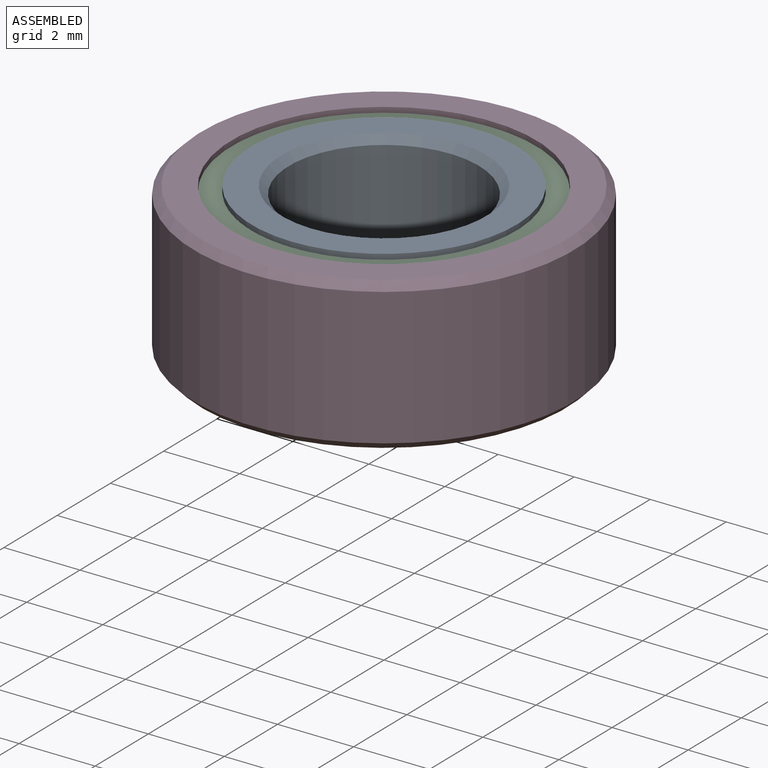
[diagram: assembled view]
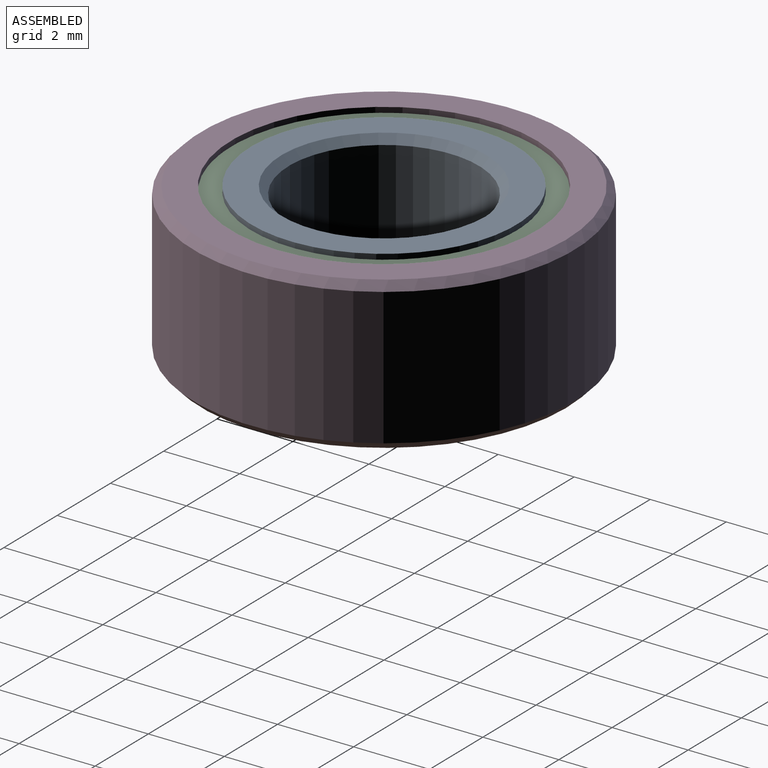
[diagram: assembled view, second angle]
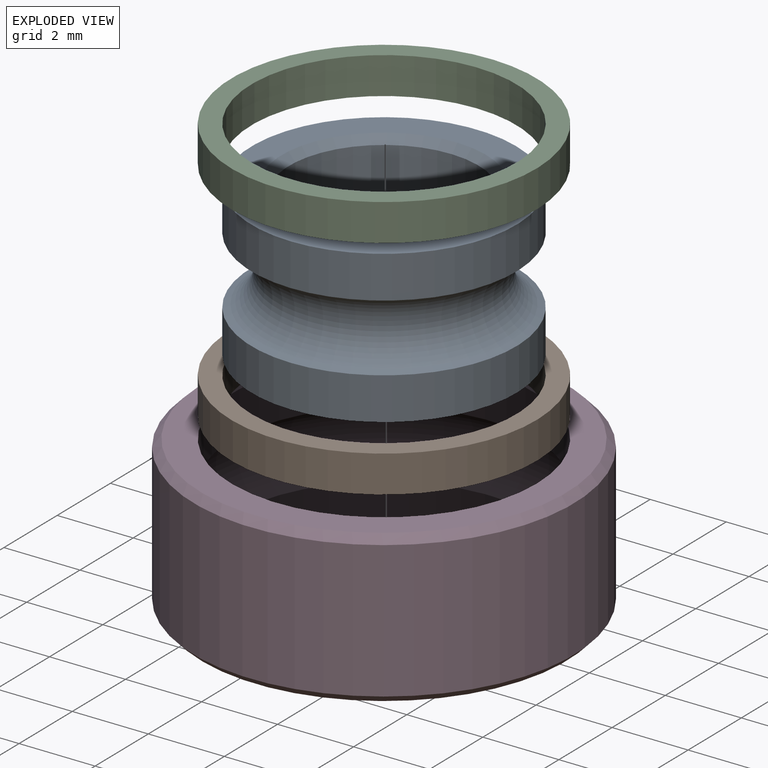
[diagram: exploded view]
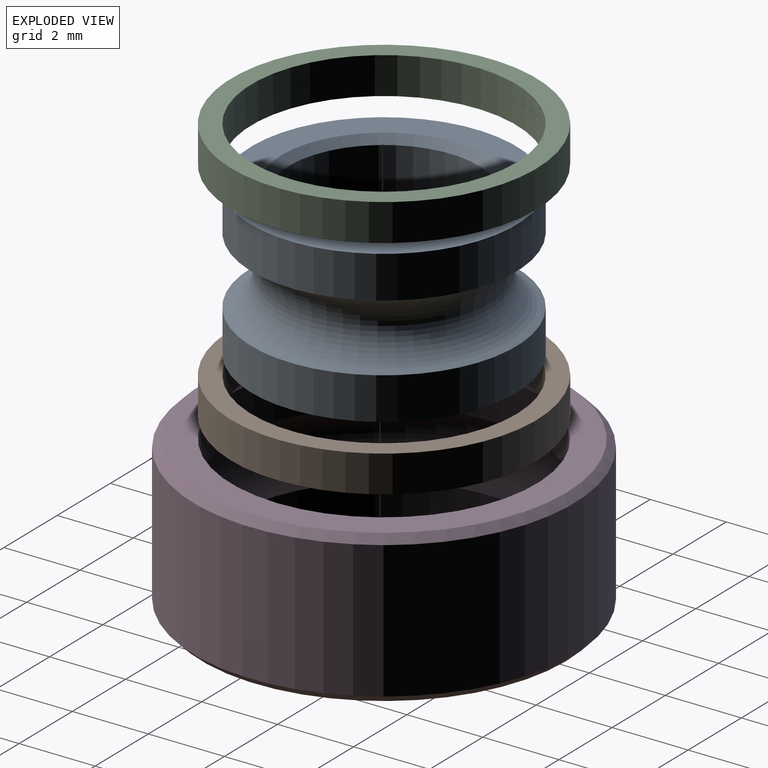
[diagram: exploded view, second angle]
ASSEMBLY  parts=4 mates=3
PART A: 8 faces, bbox 8.1x8.1x4 mm
  f0: plane 6.97x6.97mm, normal (0,0,1), area 15.3mm2, adj f1,f7
  f1: cylinder r=3.49mm len=6.97mm, axis (0,0,1), area 24.3mm2, adj f0,f2
  f2: torus R=3.75mm, axis (0,0,1), area 45.7mm2, adj f1,f3
  f3: cylinder r=3.49mm len=6.97mm, axis (0,0,1), area 24.3mm2, adj f2,f4
  f4: plane 6.97x6.97mm, normal (0,0,-1), area 15.3mm2, adj f3,f5
  f5: cone r=2.5mm half-angle=45deg, axis (0,0,-1), area 4.6mm2, adj f4,f6
  f6: cylinder r=2.5mm len=5mm, axis (0,0,1), area 56.5mm2, adj f5,f7
  f7: cone r=2.7mm half-angle=45deg, axis (0,0,1), area 4.6mm2, adj f0,f6
PART B: 4 faces, bbox 8x8x1 mm
  f0: plane 8.03x8.03mm, normal (0,0,-1), area 12.4mm2, adj f1,f3
  f1: cylinder r=3.49mm len=6.97mm, axis (0,0,1), area 21.3mm2, adj f0,f2
  f2: plane 8.03x8.03mm, normal (0,0,1), area 12.4mm2, adj f1,f3
  f3: cylinder r=4.01mm len=8.03mm, axis (0,0,1), area 24.5mm2, adj f0,f2
PART C: 4 faces, bbox 8x8x1 mm
  f0: plane 8.03x8.03mm, normal (0,0,1), area 12.4mm2, adj f1,f3
  f1: cylinder r=3.49mm len=6.97mm, axis (0,0,1), area 21.3mm2, adj f0,f2
  f2: plane 8.03x8.03mm, normal (0,0,-1), area 12.4mm2, adj f1,f3
  f3: cylinder r=4.01mm len=8.03mm, axis (0,0,1), area 24.5mm2, adj f0,f2
PART D: 8 faces, bbox 10.1x10.1x4 mm
  f0: cone r=5mm half-angle=45deg, axis (0,0,-1), area 8.7mm2, adj f1,f7
  f1: cylinder r=5mm len=10mm, axis (0,0,1), area 113.1mm2, adj f0,f2
  f2: cone r=4.8mm half-angle=45deg, axis (0,0,1), area 8.7mm2, adj f1,f3
  f3: plane 9.6x9.6mm, normal (0,0,-1), area 21.8mm2, adj f2,f4
  f4: cylinder r=4.01mm len=8.03mm, axis (0,0,1), area 28mm2, adj f3,f5
  f5: torus R=3.75mm, axis (0,0,1), area 66.4mm2, adj f4,f6
  f6: cylinder r=4.01mm len=8.03mm, axis (0,0,1), area 28mm2, adj f5,f7
  f7: plane 9.6x9.6mm, normal (0,0,1), area 21.8mm2, adj f0,f6
PLACE A rot(axis=(0,0,-1),13.8deg) t=(0,0,0)mm
PLACE B rot(axis=(0,0,-1),13.8deg) t=(0,0,0.04)mm
PLACE C rot(axis=(0,0,-1),13.8deg) t=(0,0,-0.04)mm
PLACE D rot(axis=(0,0,-1),25.1deg) t=(0,0,0)mm fixed
MATE fastened C.f1 <-> A.f1  axis (0,0,1) through (0,0,0.89)mm
MATE revolute D.f0 <-> B.f1  axis (0,0,1) through (0,0,-0.89)mm
MATE fastened B.f1 <-> A.f1  axis (0,0,1) through (0,0,-0.89)mm
